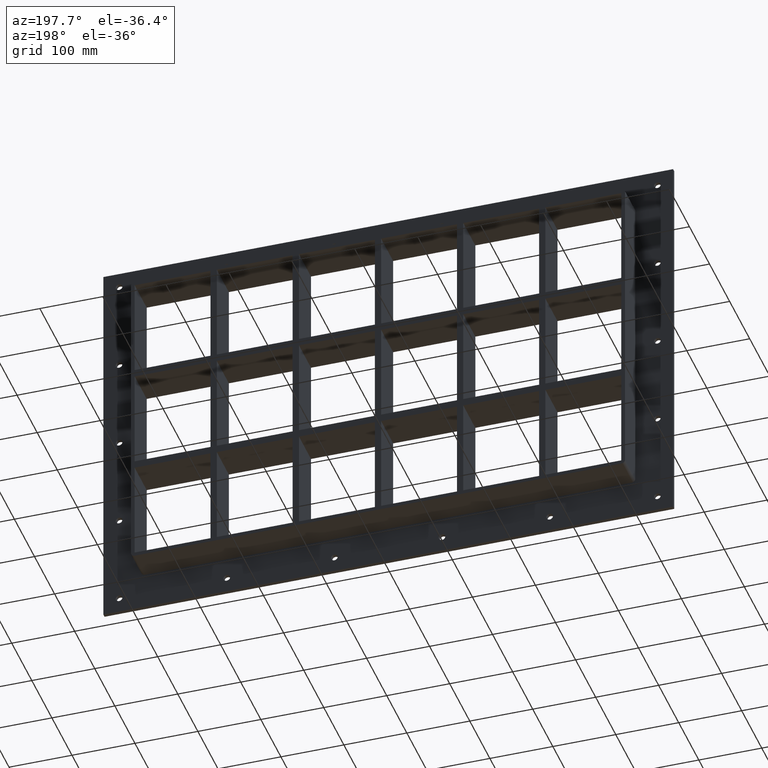
[diagram: clean part render]
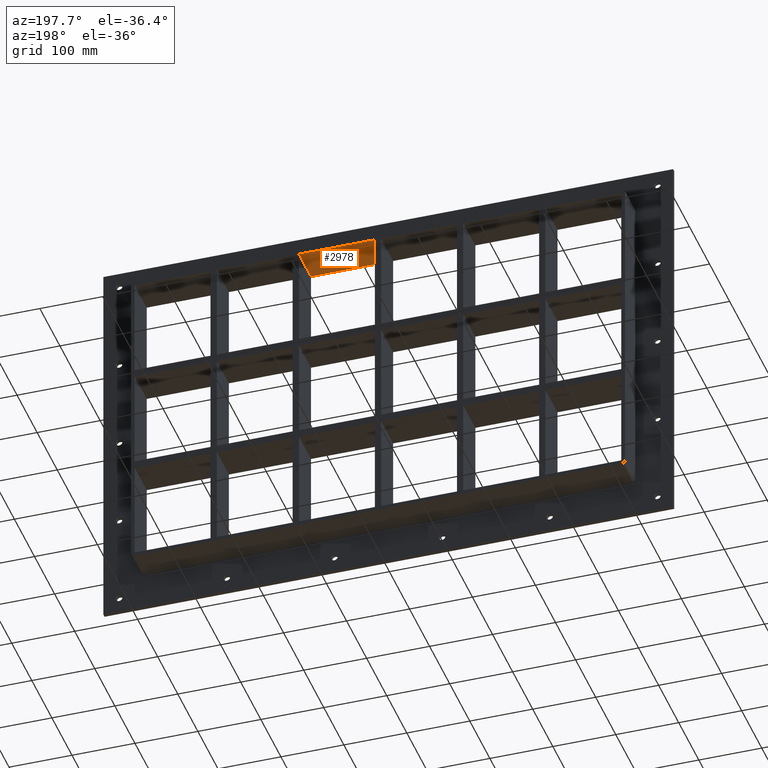
[diagram: same view with one face highlighted and labeled with its STEP entity id]
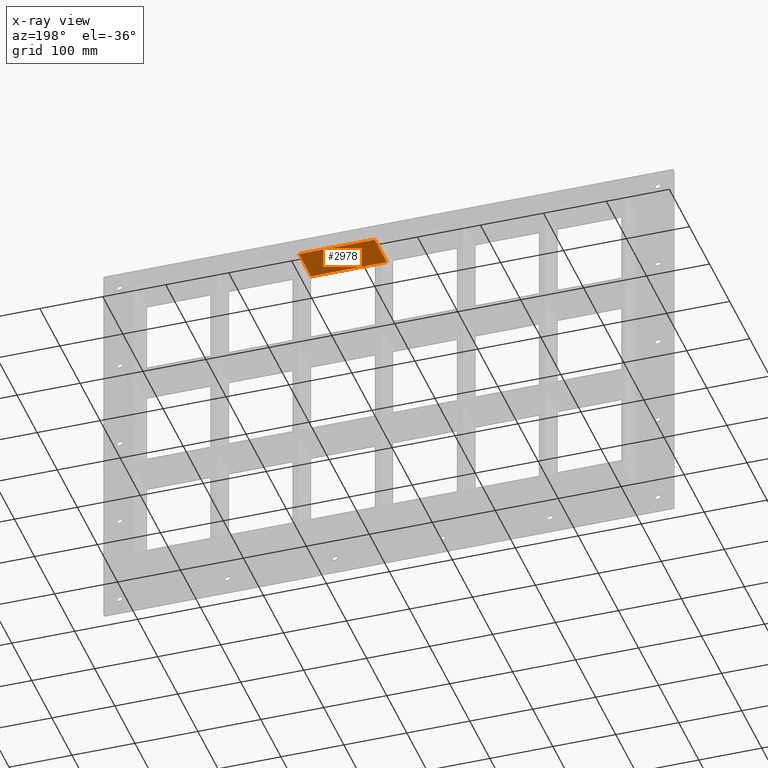
[diagram: x-ray of the same camera — body ghosted, the highlighted face saturated]
A machine part, auxiliary view. The second image highlights one B-rep face of the part: STEP entity #2978.
The next image is the same camera in x-ray: the body ghosted, the highlighted face saturated — about 0% of this face is hidden behind the body in this view.
In plain terms, the highlighted planar face has unit normal (0, 0, 1).
Its self-contained STEP definition (entity closure, byte-faithful):
#1213=CARTESIAN_POINT('',(125.49999999999787,-3.0,251.25));
#1214=VERTEX_POINT('',#1213);
#1221=CARTESIAN_POINT('',(125.49999999999787,57.0,251.25));
#1222=VERTEX_POINT('',#1221);
#1223=CARTESIAN_POINT('',(125.4999999999979,57.000000000000007,251.25));
#1224=DIRECTION('',(0.0,-1.0,0.0));
#1225=VECTOR('',#1224,60.000000000000007);
#1226=LINE('',#1223,#1225);
#1227=EDGE_CURVE('',#1222,#1214,#1226,.T.);
#1306=CARTESIAN_POINT('',(4.999999999996376,57.0,251.25));
#1307=VERTEX_POINT('',#1306);
#1314=CARTESIAN_POINT('',(4.999999999996376,-3.0,251.25));
#1315=VERTEX_POINT('',#1314);
#1316=CARTESIAN_POINT('',(4.999999999996376,-3.0,251.25));
#1317=DIRECTION('',(0.0,1.0,0.0));
#1318=VECTOR('',#1317,60.000000000000007);
#1319=LINE('',#1316,#1318);
#1320=EDGE_CURVE('',#1315,#1307,#1319,.T.);
#1602=CARTESIAN_POINT('',(125.4999999999979,57.0,251.25));
#1603=DIRECTION('',(-1.0,0.0,0.0));
#1604=VECTOR('',#1603,120.50000000000151);
#1605=LINE('',#1602,#1604);
#1606=EDGE_CURVE('',#1222,#1307,#1605,.T.);
#2668=CARTESIAN_POINT('',(4.99999999999639,-3.0,251.25));
#2669=DIRECTION('',(1.0,0.0,0.0));
#2670=VECTOR('',#2669,120.50000000000151);
#2671=LINE('',#2668,#2670);
#2672=EDGE_CURVE('',#1315,#1214,#2671,.T.);
#2967=CARTESIAN_POINT('',(-386.50000000000011,0.0,251.25));
#2968=DIRECTION('',(0.0,0.0,1.0));
#2969=DIRECTION('',(1.0,0.0,0.0));
#2970=AXIS2_PLACEMENT_3D('',#2967,#2968,#2969);
#2971=PLANE('',#2970);
#2972=ORIENTED_EDGE('',*,*,#1227,.T.);
#2973=ORIENTED_EDGE('',*,*,#2672,.F.);
#2974=ORIENTED_EDGE('',*,*,#1320,.T.);
#2975=ORIENTED_EDGE('',*,*,#1606,.F.);
#2976=EDGE_LOOP('',(#2972,#2973,#2974,#2975));
#2977=FACE_OUTER_BOUND('',#2976,.T.);
#2978=ADVANCED_FACE('',(#2977),#2971,.F.);